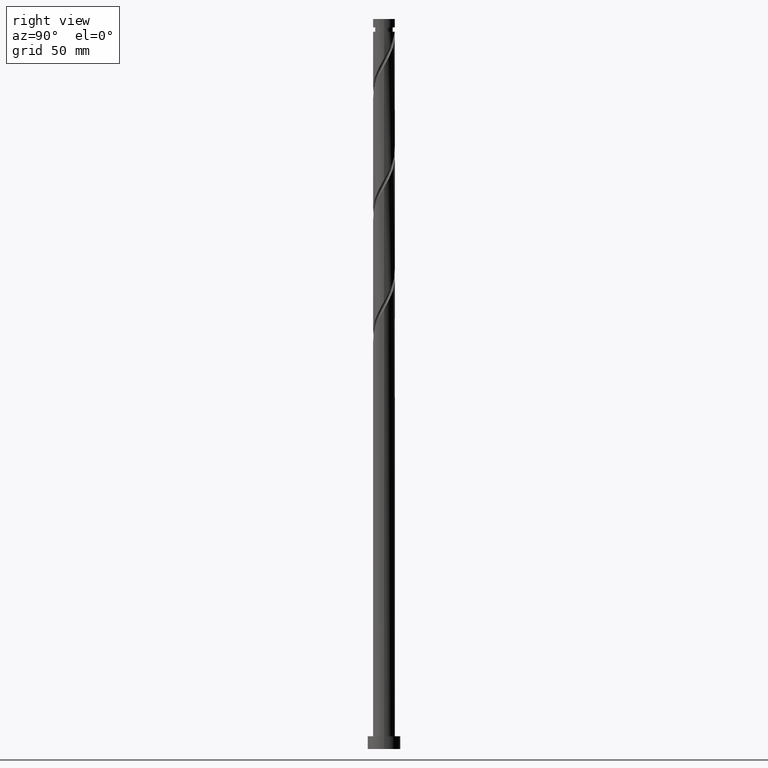
[diagram: clean part render]
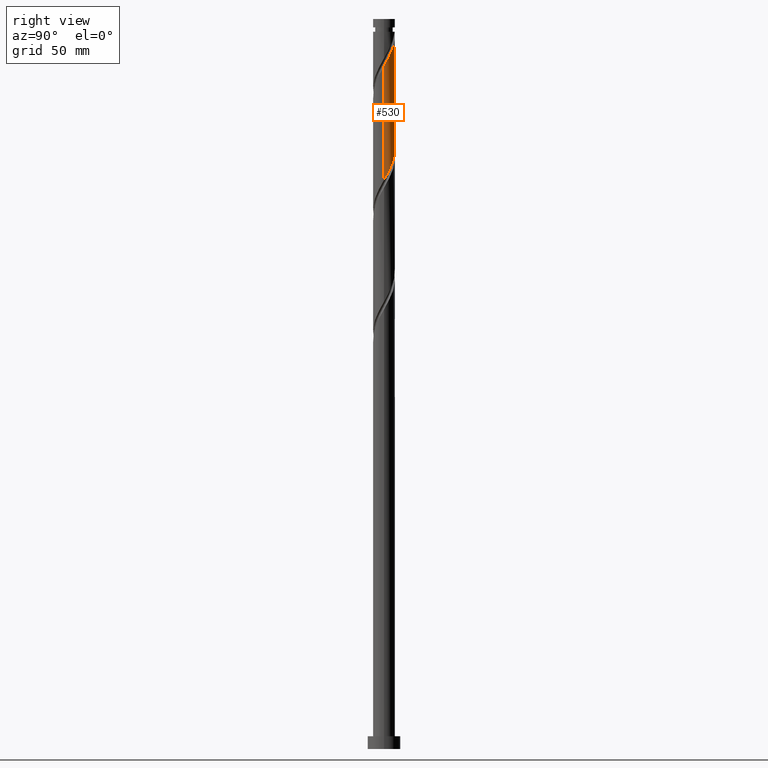
[diagram: same view with one face highlighted and labeled with its STEP entity id]
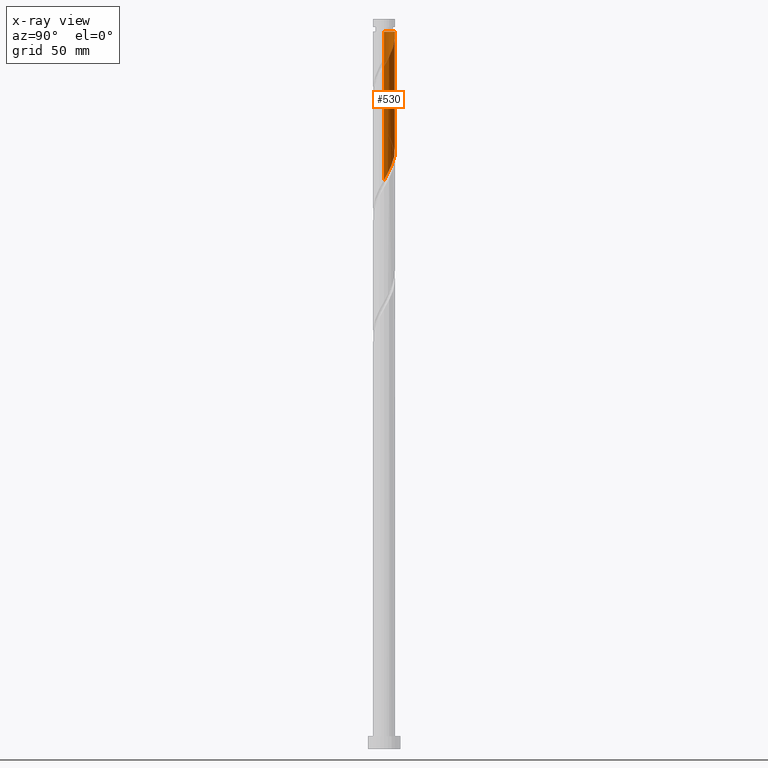
[diagram: x-ray of the same camera — body ghosted, the highlighted face saturated]
A machine part, right view. The second image highlights one B-rep face of the part: STEP entity #530.
The next image is the same camera in x-ray: the body ghosted, the highlighted face saturated — about 0% of this face is hidden behind the body in this view.
In plain terms, the highlighted cylindrical surface (edge-blend (fillet) strip) has radius 6 mm, axis along (-0, -0, -1).
Its self-contained STEP definition (entity closure, byte-faithful):
#17 = LINE ( 'NONE', #1716, #1344 ) ;
#60 = CARTESIAN_POINT ( 'NONE',  ( 1.916477387274987398, 5.720559660890873310, 387.4992390047497679 ) ) ;
#100 = CARTESIAN_POINT ( 'NONE',  ( 5.999999999999998224, 0.3418424246786052056, 312.4524957798780633 ) ) ;
#167 = LINE ( 'NONE', #1264, #894 ) ;
#168 = ORIENTED_EDGE ( 'NONE', *, *, #1263, .F. ) ;
#183 = CARTESIAN_POINT ( 'NONE',  ( -1.300851956989454106, 5.857284711024100865, 330.8325723380830254 ) ) ;
#206 = CARTESIAN_POINT ( 'NONE',  ( 5.533577987046123248, 2.403581301106089363, 378.6103501158608537 ) ) ;
#262 = DIRECTION ( 'NONE',  ( -0.000000000000000000, -0.000000000000000000, -1.000000000000000000 ) ) ;
#268 = CARTESIAN_POINT ( 'NONE',  ( 5.488895400337412411, 2.503940034007000826, 316.3881278936387389 ) ) ;
#308 = AXIS2_PLACEMENT_3D ( 'NONE', #1960, #262, #1201 ) ;
#341 = CARTESIAN_POINT ( 'NONE',  ( -5.533577987046111701, 2.403581301106092916, 340.8325723380831391 ) ) ;
#348 = CARTESIAN_POINT ( 'NONE',  ( -1.916477387274980959, 5.720559660890866205, 331.9436834491941681 ) ) ;
#367 = CARTESIAN_POINT ( 'NONE',  ( -5.999999999999999112, 0.2870639957204957349, 344.6716892782628179 ) ) ;
#368 = ORIENTED_EDGE ( 'NONE', *, *, #1925, .F. ) ;
#377 = CARTESIAN_POINT ( 'NONE',  ( 3.995911296558494197, 4.519997933603992379, 320.8325723380830254 ) ) ;
#404 = CARTESIAN_POINT ( 'NONE',  ( 3.570759717274364142, 4.821791683751050606, 384.1659056714162830 ) ) ;
#411 = CARTESIAN_POINT ( 'NONE',  ( 5.889548272695533271, 1.308017413239296767, 314.1659056714164535 ) ) ;
#421 = CARTESIAN_POINT ( 'NONE',  ( 4.848351460342186670, 3.590428460051241277, 318.6103501158608537 ) ) ;
#443 = VERTEX_POINT ( 'NONE', #867 ) ;
#514 = CARTESIAN_POINT ( 'NONE',  ( -3.063968989743303339, 5.197093653152651704, 334.1659056714163398 ) ) ;
#516 = CARTESIAN_POINT ( 'NONE',  ( 0.05462725276908272226, 5.999751316784303512, 390.8325723380829686 ) ) ;
#530 = ADVANCED_FACE ( 'NONE', ( #769 ), #1707, .T. ) ;
#555 = CIRCLE ( 'NONE', #308, 5.999999999999966249 ) ;
#570 = CARTESIAN_POINT ( 'NONE',  ( 4.422131378450341543, 4.055213196827619271, 319.7214612269719964 ) ) ;
#596 = VERTEX_POINT ( 'NONE', #904 ) ;
#635 = VERTEX_POINT ( 'NONE', #1355 ) ;
#645 = ORIENTED_EDGE ( 'NONE', *, *, #1197, .F. ) ;
#650 = VERTEX_POINT ( 'NONE', #2005 ) ;
#667 = CARTESIAN_POINT ( 'NONE',  ( -5.223250683108875414, 2.952567069755172469, 339.7214612269719396 ) ) ;
#670 = CARTESIAN_POINT ( 'NONE',  ( 6.000000000000008882, -1.195873233653218653E-15, 374.2626846501170235 ) ) ;
#676 = CARTESIAN_POINT ( 'NONE',  ( -5.972594154091097174, 0.5728167861688778784, 344.1659056714164535 ) ) ;
#678 = CARTESIAN_POINT ( 'NONE',  ( -1.193984924527946356, 5.880000000000003446, 393.0547945603052540 ) ) ;
#697 = CARTESIAN_POINT ( 'NONE',  ( 3.482370965581957911, 4.886009870852878301, 321.9436834491941681 ) ) ;
#711 = CARTESIAN_POINT ( 'NONE',  ( 5.223250683108884296, 2.952567069755173801, 379.7214612269719396 ) ) ;
#769 = FACE_OUTER_BOUND ( 'NONE', #1967, .T. ) ;
#823 = CARTESIAN_POINT ( 'NONE',  ( 5.912388683833484038, 1.200561727286871383, 376.3881278936386252 ) ) ;
#833 = CARTESIAN_POINT ( 'NONE',  ( 2.490223188509147700, 5.458826657021764284, 386.3881278936386252 ) ) ;
#842 = CARTESIAN_POINT ( 'NONE',  ( 6.000000000000008882, 0.2870639957204802473, 374.7712331756811182 ) ) ;
#854 = CARTESIAN_POINT ( 'NONE',  ( 3.063968989743312665, 5.197093653152654369, 385.2770167825274257 ) ) ;
#867 = CARTESIAN_POINT ( 'NONE',  ( -5.999999999999999112, -1.324429606270948181E-14, 345.1802378038268557 ) ) ;
#894 = VECTOR ( 'NONE', #1879, 1000.000000000000000 ) ;
#899 = CARTESIAN_POINT ( 'NONE',  ( 5.168623430339799540, 3.047184247029121718, 317.4992390047498247 ) ) ;
#904 = CARTESIAN_POINT ( 'NONE',  ( 5.999999999999999112, 6.158747153314116542E-15, 311.8469044704935413 ) ) ;
#938 = CARTESIAN_POINT ( 'NONE',  ( 0.000000000000000000, 0.000000000000000000, 400.0000000000000000 ) ) ;
#966 =( BOUNDED_CURVE ( )  B_SPLINE_CURVE ( 2, ( #1119, #367, #676, #1740, #1298, #341, #667, #1137, #980, #1914, #973, #514, #1589, #348, #183, #1147, #1280, #1896, #1439, #1756, #988, #1766, #697, #377, #570, #421, #899, #268, #1166, #411, #1806, #100, #1638 ),
 .UNSPECIFIED., .F., .T. ) 
 B_SPLINE_CURVE_WITH_KNOTS ( ( 3, 2, 2, 2, 2, 2, 2, 2, 2, 2, 2, 2, 2, 2, 2, 2, 3 ),
 ( 0.4295286012773114059, 0.4333333333333333481, 0.4416666666666666519, 0.4500000000000000111, 0.4583333333333333148, 0.4666666666666666741, 0.4749999999999999778, 0.4833333333333333370, 0.4916666666666666408, 0.5000000000000000000, 0.5083333333333333037, 0.5166666666666667185, 0.5250000000000000222, 0.5333333333333333259, 0.5416666666666666297, 0.5500000000000000444, 0.5545286012773112949 ),
 .UNSPECIFIED. ) 
 CURVE ( )  GEOMETRIC_REPRESENTATION_ITEM ( )  RATIONAL_B_SPLINE_CURVE ( ( 0.9066196499552193755, 0.9068171577856320997, 0.9090909090909310430, 0.9041108139711793168, 0.9090909090909310430, 0.9041108139711793168, 0.9090909090909310430, 0.9041108139711793168, 0.9090909090909310430, 0.9041108139711793168, 0.9090909090909310430, 0.9041108139711793168, 0.9090909090909310430, 0.9041108139711793168, 0.9090909090909310430, 0.9041108139711793168, 0.9090909090909310430, 0.9041108139711793168, 0.9090909090909310430, 0.9041108139711793168, 0.9090909090909310430, 0.9041108139711793168, 0.9090909090909310430, 0.9041108139711793168, 0.9090909090909310430, 0.9041108139711793168, 0.9090909090909310430, 0.9041108139711793168, 0.9090909090909310430, 0.9041108139711793168, 0.9090909090909310430, 0.9063845652764783711, 0.9066196499552194865 ) ) 
 REPRESENTATION_ITEM ( '' )  );
#973 = CARTESIAN_POINT ( 'NONE',  ( -3.570759717274355705, 4.821791683751045277, 335.2770167825275394 ) ) ;
#980 = CARTESIAN_POINT ( 'NONE',  ( -4.495236911988522266, 3.974021276376848100, 337.4992390047497111 ) ) ;
#988 = CARTESIAN_POINT ( 'NONE',  ( 2.390414231247773635, 5.503264467845252028, 324.1659056714163967 ) ) ;
#1026 = EDGE_CURVE ( 'NONE', #1416, #596, #17, .T. ) ;
#1095 = DIRECTION ( 'NONE',  ( -0.000000000000000000, -0.000000000000000000, -1.000000000000000000 ) ) ;
#1119 = CARTESIAN_POINT ( 'NONE',  ( -5.999999999999999112, -1.324429606270948181E-14, 345.1802378038268557 ) ) ;
#1137 = CARTESIAN_POINT ( 'NONE',  ( -4.912923379171640015, 3.501552838404253354, 338.6103501158607969 ) ) ;
#1147 = CARTESIAN_POINT ( 'NONE',  ( -0.6852265267039274743, 5.994009761157336413, 329.7214612269720533 ) ) ;
#1166 = CARTESIAN_POINT ( 'NONE',  ( 5.689221836516471953, 1.905978723623146465, 315.2770167825275962 ) ) ;
#1197 = EDGE_CURVE ( 'NONE', #650, #443, #167, .T. ) ;
#1201 = DIRECTION ( 'NONE',  ( -1.000000000000000000, 0.000000000000000000, 0.000000000000000000 ) ) ;
#1221 =( BOUNDED_CURVE ( )  B_SPLINE_CURVE ( 2, ( #670, #842, #1653, #823, #1800, #206, #711, #1464, #1290, #1630, #404, #854, #833, #60, #1642, #1442, #516, #1948, #678 ),
 .UNSPECIFIED., .F., .T. ) 
 B_SPLINE_CURVE_WITH_KNOTS ( ( 3, 2, 2, 2, 2, 2, 2, 2, 2, 3 ),
 ( 0.6795286012773112949, 0.6833333333333333481, 0.6916666666666666519, 0.6999999999999998446, 0.7083333333333331483, 0.7166666666666665630, 0.7249999999999998668, 0.7333333333333331705, 0.7416666666666664742, 0.7499999999999997780 ),
 .UNSPECIFIED. ) 
 CURVE ( )  GEOMETRIC_REPRESENTATION_ITEM ( )  RATIONAL_B_SPLINE_CURVE ( ( 0.9066196499552254817, 0.9068171577856380949, 0.9090909090909370383, 0.9041108139711853120, 0.9090909090909370383, 0.9041108139711853120, 0.9090909090909370383, 0.9041108139711853120, 0.9090909090909370383, 0.9041108139711853120, 0.9090909090909370383, 0.9041108139711853120, 0.9090909090909370383, 0.9041108139711853120, 0.9090909090909370383, 0.9041108139711853120, 0.9090909090909370383, 0.9041108139711854230, 0.9090909090909369272 ) ) 
 REPRESENTATION_ITEM ( '' )  );
#1263 = EDGE_CURVE ( 'NONE', #1416, #635, #1221, .T. ) ;
#1264 = CARTESIAN_POINT ( 'NONE',  ( -6.000000000000000888, 0.000000000000000000, 400.0000000000000000 ) ) ;
#1280 = CARTESIAN_POINT ( 'NONE',  ( -0.05462725276907857280, 5.999751316784295518, 328.6103501158608537 ) ) ;
#1290 = CARTESIAN_POINT ( 'NONE',  ( 4.495236911988532924, 3.974021276376848988, 381.9436834491941681 ) ) ;
#1298 = CARTESIAN_POINT ( 'NONE',  ( -5.722983335439793429, 1.802071514196482482, 341.9436834491942250 ) ) ;
#1344 = VECTOR ( 'NONE', #1095, 1000.000000000000000 ) ;
#1355 = CARTESIAN_POINT ( 'NONE',  ( -1.193984924527946356, 5.880000000000004334, 393.0547945603052540 ) ) ;
#1367 = ORIENTED_EDGE ( 'NONE', *, *, #1026, .T. ) ;
#1416 = VERTEX_POINT ( 'NONE', #1509 ) ;
#1439 = CARTESIAN_POINT ( 'NONE',  ( 1.193984924527949243, 5.879999999999997229, 326.3881278936386252 ) ) ;
#1442 = CARTESIAN_POINT ( 'NONE',  ( 0.6852265267039308050, 5.994009761157345295, 389.7214612269720533 ) ) ;
#1464 = CARTESIAN_POINT ( 'NONE',  ( 4.912923379171648897, 3.501552838404255574, 380.8325723380830254 ) ) ;
#1506 = ORIENTED_EDGE ( 'NONE', *, *, #1510, .T. ) ;
#1509 = CARTESIAN_POINT ( 'NONE',  ( 6.000000000000008882, -1.195873233653218653E-15, 374.2626846501170803 ) ) ;
#1510 = EDGE_CURVE ( 'NONE', #650, #635, #555, .T. ) ;
#1511 = DIRECTION ( 'NONE',  ( -1.000000000000000000, 0.000000000000000000, 0.000000000000000000 ) ) ;
#1589 = CARTESIAN_POINT ( 'NONE',  ( -2.490223188509142371, 5.458826657021758066, 333.0547945603053108 ) ) ;
#1630 = CARTESIAN_POINT ( 'NONE',  ( 4.077550444805415175, 4.446489714349447731, 383.0547945603051403 ) ) ;
#1638 = CARTESIAN_POINT ( 'NONE',  ( 5.999999999999999112, 6.158747153314116542E-15, 311.8469044704935982 ) ) ;
#1642 = CARTESIAN_POINT ( 'NONE',  ( 1.300851956989461655, 5.857284711024107970, 388.6103501158608537 ) ) ;
#1653 = CARTESIAN_POINT ( 'NONE',  ( 5.972594154091105167, 0.5728167861688723272, 375.2770167825274257 ) ) ;
#1697 = DIRECTION ( 'NONE',  ( -0.000000000000000000, -0.000000000000000000, -1.000000000000000000 ) ) ;
#1707 = CYLINDRICAL_SURFACE ( 'NONE', #1992, 6.000000000000000888 ) ;
#1716 = CARTESIAN_POINT ( 'NONE',  ( 6.000000000000000888, 7.347880794884120722E-16, 400.0000000000000000 ) ) ;
#1740 = CARTESIAN_POINT ( 'NONE',  ( -5.912388683833474268, 1.200561727286872271, 343.0547945603053108 ) ) ;
#1756 = CARTESIAN_POINT ( 'NONE',  ( 1.811997827890129420, 5.754507127588739834, 325.2770167825275394 ) ) ;
#1766 = CARTESIAN_POINT ( 'NONE',  ( 2.968830634605418073, 5.252021808101766887, 323.0547945603051971 ) ) ;
#1800 = CARTESIAN_POINT ( 'NONE',  ( 5.722983335439801422, 1.802071514196480484, 377.4992390047497111 ) ) ;
#1806 = CARTESIAN_POINT ( 'NONE',  ( 5.961173948522126231, 0.6814727840942074177, 313.0547945603053108 ) ) ;
#1879 = DIRECTION ( 'NONE',  ( -0.000000000000000000, -0.000000000000000000, -1.000000000000000000 ) ) ;
#1896 = CARTESIAN_POINT ( 'NONE',  ( 0.5759720211657700650, 6.005492872411254623, 327.4992390047497111 ) ) ;
#1914 = CARTESIAN_POINT ( 'NONE',  ( -4.077550444805408070, 4.446489714349443290, 336.3881278936385684 ) ) ;
#1925 = EDGE_CURVE ( 'NONE', #443, #596, #966, .T. ) ;
#1948 = CARTESIAN_POINT ( 'NONE',  ( -0.5759720211657484157, 6.005492872411263505, 391.9436834491941681 ) ) ;
#1960 = CARTESIAN_POINT ( 'NONE',  ( 0.000000000000000000, 0.000000000000000000, 393.0547945603053677 ) ) ;
#1967 = EDGE_LOOP ( 'NONE', ( #168, #1367, #368, #645, #1506 ) ) ;
#1992 = AXIS2_PLACEMENT_3D ( 'NONE', #938, #1697, #1511 ) ;
#2005 = CARTESIAN_POINT ( 'NONE',  ( -5.999999999999966249, 0.000000000000000000, 393.0547945603053677 ) ) ;